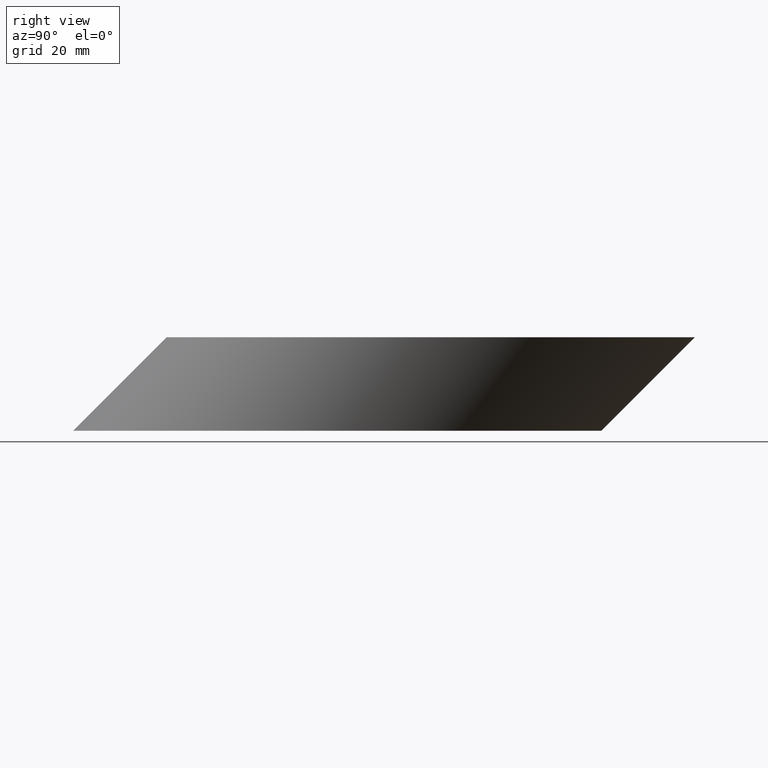
[diagram: clean part render]
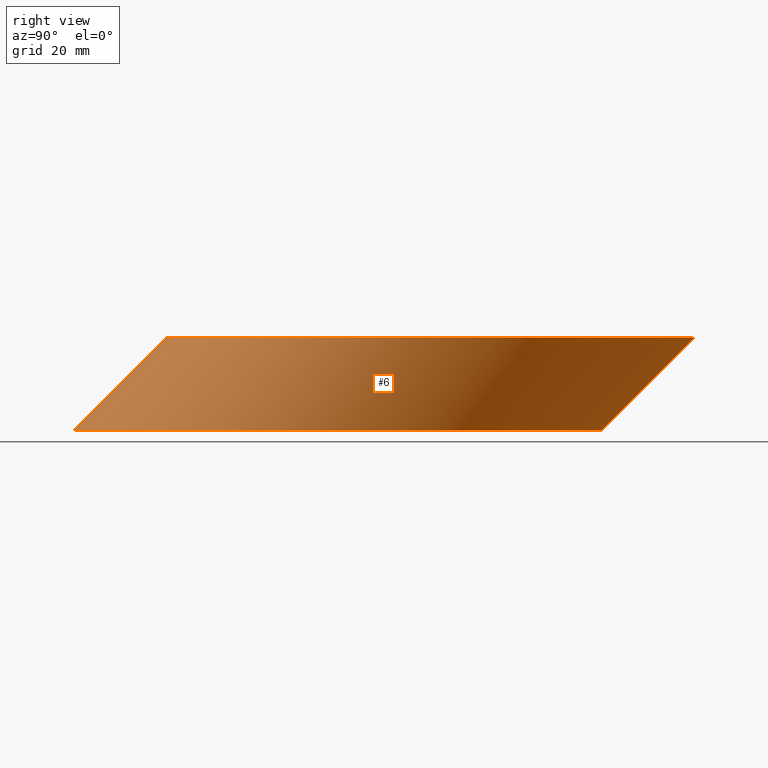
[diagram: same view with one face highlighted and labeled with its STEP entity id]
A machine part, right view. The second image highlights one B-rep face of the part: STEP entity #6.
In plain terms, the highlighted face is a freeform B-spline surface patch.
Its self-contained STEP definition (entity closure, byte-faithful):
#4 = CARTESIAN_POINT ( 'NONE',  ( -25.60761701828393910, 92.36387153032208630, -1.040834085586084099E-14 ) ) ;
#5 = CARTESIAN_POINT ( 'NONE',  ( 134.3923829817160254, -20.78612846967790873, 0.000000000000000000 ) ) ;
#6 = ADVANCED_FACE ( 'NONE', ( #28, #98 ), #40, .T. ) ;
#9 = CARTESIAN_POINT ( 'NONE',  ( 54.39238298171605379, 92.36387153032210051, 0.000000000000000000 ) ) ;
#12 = EDGE_CURVE ( 'NONE', #30, #30, #13, .T. ) ;
#13 =( BOUNDED_CURVE ( )  B_SPLINE_CURVE ( 3, ( #123, #63, #48, #99, #144, #15, #16 ),
 .UNSPECIFIED., .T., .T. ) 
 B_SPLINE_CURVE_WITH_KNOTS ( ( 4, 3, 4 ),
 ( 0.000000000000000000, 3.141592653589793116, 6.283185307179586232 ),
 .UNSPECIFIED. ) 
 CURVE ( )  GEOMETRIC_REPRESENTATION_ITEM ( )  RATIONAL_B_SPLINE_CURVE ( ( 1.000000000000000000, 0.3333333333333333703, 0.3333333333333333703, 1.000000000000000000, 0.3333333333333333703, 0.3333333333333333703, 1.000000000000000000 ) ) 
 REPRESENTATION_ITEM ( '' )  );
#14 = CARTESIAN_POINT ( 'NONE',  ( 54.39238298171605379, 92.36387153032208630, -1.040834085586084257E-14 ) ) ;
#15 = CARTESIAN_POINT ( 'NONE',  ( 134.3923829817160538, 72.36387153032197261, -20.00000000000000355 ) ) ;
#16 = CARTESIAN_POINT ( 'NONE',  ( 54.39238298171605379, 72.36387153032198682, -20.00000000000000355 ) ) ;
#18 = VERTEX_POINT ( 'NONE', #9 ) ;
#23 = CARTESIAN_POINT ( 'NONE',  ( 134.3923829817160538, 92.36387153032208630, -1.040834085586084099E-14 ) ) ;
#24 = ORIENTED_EDGE ( 'NONE', *, *, #100, .F. ) ;
#26 = CARTESIAN_POINT ( 'NONE',  ( 54.39238298171604669, -40.78612846967801886, -20.00000000000000711 ) ) ;
#28 = FACE_OUTER_BOUND ( 'NONE', #47, .T. ) ;
#30 = VERTEX_POINT ( 'NONE', #51 ) ;
#36 = CARTESIAN_POINT ( 'NONE',  ( 54.39238298171605379, 92.36387153032208630, -1.040834085586084257E-14 ) ) ;
#40 =( BOUNDED_SURFACE ( )  B_SPLINE_SURFACE ( 3, 1, ( 
 ( #77, #14 ),
 ( #111, #4 ),
 ( #62, #132 ),
 ( #26, #78 ),
 ( #122, #133 ),
 ( #97, #23 ),
 ( #65, #36 ) ),
 .UNSPECIFIED., .T., .F., .F. ) 
 B_SPLINE_SURFACE_WITH_KNOTS ( ( 4, 3, 4 ),
 ( 2, 2 ),
 ( 0.000000000000000000, 0.5000000000000000000, 1.000000000000000000 ),
 ( 0.000000000000000000, 1.000000000000000000 ),
 .UNSPECIFIED. ) 
 GEOMETRIC_REPRESENTATION_ITEM ( )  RATIONAL_B_SPLINE_SURFACE ( (
 ( 1.000000000000000000, 1.000000000000000000),
 ( 0.3333333333333333703, 0.3333333333333333703),
 ( 0.3333333333333333703, 0.3333333333333333703),
 ( 1.000000000000000000, 1.000000000000000000),
 ( 0.3333333333333333703, 0.3333333333333333703),
 ( 0.3333333333333333703, 0.3333333333333333703),
 ( 1.000000000000000000, 1.000000000000000000) ) ) 
 REPRESENTATION_ITEM ( '' )  SURFACE ( )  );
#42 = CARTESIAN_POINT ( 'NONE',  ( -25.60761701828394266, -20.78612846967788030, 0.000000000000000000 ) ) ;
#47 = EDGE_LOOP ( 'NONE', ( #79 ) ) ;
#48 = CARTESIAN_POINT ( 'NONE',  ( -25.60761701828394266, -40.78612846967799754, -20.00000000000000355 ) ) ;
#51 = CARTESIAN_POINT ( 'NONE',  ( 54.39238298171605379, 72.36387153032198682, -20.00000000000000355 ) ) ;
#62 = CARTESIAN_POINT ( 'NONE',  ( -25.60761701828394266, -40.78612846967800465, -20.00000000000000711 ) ) ;
#63 = CARTESIAN_POINT ( 'NONE',  ( -25.60761701828393910, 72.36387153032197261, -20.00000000000000355 ) ) ;
#65 = CARTESIAN_POINT ( 'NONE',  ( 54.39238298171605379, 72.36387153032197261, -20.00000000000000711 ) ) ;
#66 = CARTESIAN_POINT ( 'NONE',  ( 54.39238298171604669, -20.78612846967789451, 0.000000000000000000 ) ) ;
#68 = CARTESIAN_POINT ( 'NONE',  ( 54.39238298171605379, 92.36387153032210051, 0.000000000000000000 ) ) ;
#77 = CARTESIAN_POINT ( 'NONE',  ( 54.39238298171605379, 72.36387153032197261, -20.00000000000000711 ) ) ;
#78 = CARTESIAN_POINT ( 'NONE',  ( 54.39238298171604669, -20.78612846967790517, -1.040834085586084257E-14 ) ) ;
#79 = ORIENTED_EDGE ( 'NONE', *, *, #12, .T. ) ;
#91 = CARTESIAN_POINT ( 'NONE',  ( 54.39238298171605379, 92.36387153032210051, 0.000000000000000000 ) ) ;
#97 = CARTESIAN_POINT ( 'NONE',  ( 134.3923829817160538, 72.36387153032197261, -20.00000000000000711 ) ) ;
#98 = FACE_OUTER_BOUND ( 'NONE', #121, .T. ) ;
#99 = CARTESIAN_POINT ( 'NONE',  ( 54.39238298171604669, -40.78612846967801175, -20.00000000000000355 ) ) ;
#100 = EDGE_CURVE ( 'NONE', #18, #18, #105, .T. ) ;
#102 = CARTESIAN_POINT ( 'NONE',  ( 134.3923829817160538, 92.36387153032210051, 0.000000000000000000 ) ) ;
#105 =( BOUNDED_CURVE ( )  B_SPLINE_CURVE ( 3, ( #68, #146, #42, #66, #5, #102, #91 ),
 .UNSPECIFIED., .T., .F. ) 
 B_SPLINE_CURVE_WITH_KNOTS ( ( 4, 3, 4 ),
 ( 0.000000000000000000, 3.141592653589793116, 6.283185307179586232 ),
 .UNSPECIFIED. ) 
 CURVE ( )  GEOMETRIC_REPRESENTATION_ITEM ( )  RATIONAL_B_SPLINE_CURVE ( ( 1.000000000000000000, 0.3333333333333333703, 0.3333333333333333703, 1.000000000000000000, 0.3333333333333333703, 0.3333333333333333703, 1.000000000000000000 ) ) 
 REPRESENTATION_ITEM ( '' )  );
#111 = CARTESIAN_POINT ( 'NONE',  ( -25.60761701828393910, 72.36387153032197261, -20.00000000000000711 ) ) ;
#121 = EDGE_LOOP ( 'NONE', ( #24 ) ) ;
#122 = CARTESIAN_POINT ( 'NONE',  ( 134.3923829817160254, -40.78612846967803307, -20.00000000000000711 ) ) ;
#123 = CARTESIAN_POINT ( 'NONE',  ( 54.39238298171605379, 72.36387153032198682, -20.00000000000000355 ) ) ;
#132 = CARTESIAN_POINT ( 'NONE',  ( -25.60761701828394266, -20.78612846967789451, -1.040834085586084099E-14 ) ) ;
#133 = CARTESIAN_POINT ( 'NONE',  ( 134.3923829817160254, -20.78612846967791938, -1.040834085586084099E-14 ) ) ;
#144 = CARTESIAN_POINT ( 'NONE',  ( 134.3923829817160254, -40.78612846967802597, -20.00000000000000355 ) ) ;
#146 = CARTESIAN_POINT ( 'NONE',  ( -25.60761701828393910, 92.36387153032210051, 0.000000000000000000 ) ) ;